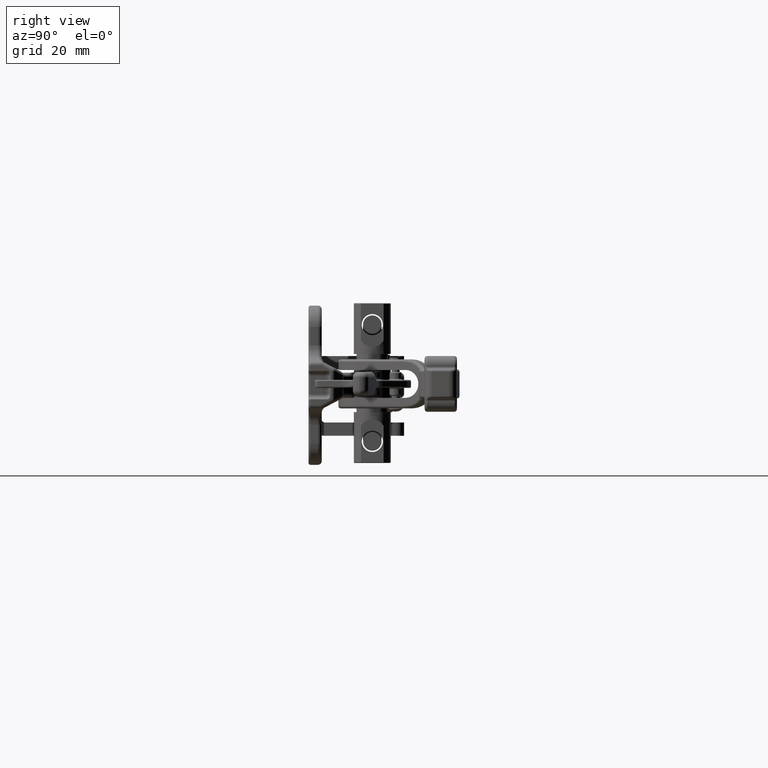
[diagram: clean part render]
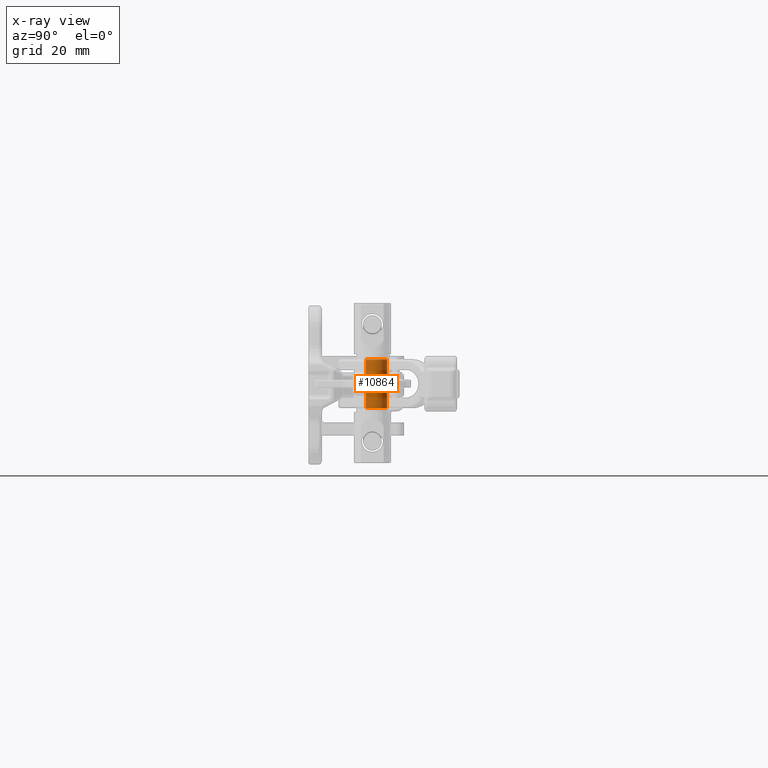
[diagram: x-ray — body ghosted, one internal face saturated and labeled with its STEP entity id]
A machine part, right view, then the same camera in x-ray: the body is ghosted and one INTERNAL B-rep face — a face not visible from any outside direction — is saturated and labeled: STEP entity #10864.
In plain terms, the highlighted cylindrical surface (bore or boss wall) has radius 4 mm, axis along (0, 0, -1).
Its self-contained STEP definition (entity closure, byte-faithful):
#634=FACE_BOUND('',#2332,.T.);
#1565=FACE_OUTER_BOUND('',#2331,.T.);
#2331=EDGE_LOOP('',(#9718));
#2332=EDGE_LOOP('',(#9719));
#4142=CIRCLE('',#12154,4.);
#4143=CIRCLE('',#12156,4.);
#5070=VERTEX_POINT('',#30830);
#5071=VERTEX_POINT('',#30833);
#6635=EDGE_CURVE('',#5070,#5070,#4142,.T.);
#6636=EDGE_CURVE('',#5071,#5071,#4143,.T.);
#9718=ORIENTED_EDGE('',*,*,#6635,.T.);
#9719=ORIENTED_EDGE('',*,*,#6636,.T.);
#10188=CYLINDRICAL_SURFACE('',#12155,4.);
#10864=ADVANCED_FACE('',(#1565,#634),#10188,.T.);
#12154=AXIS2_PLACEMENT_3D('',#30831,#15202,#15203);
#12155=AXIS2_PLACEMENT_3D('',#30832,#15204,#15205);
#12156=AXIS2_PLACEMENT_3D('',#30834,#15206,#15207);
#15202=DIRECTION('center_axis',(1.,0.,0.));
#15203=DIRECTION('ref_axis',(0.,1.,0.));
#15204=DIRECTION('center_axis',(1.,0.,0.));
#15205=DIRECTION('ref_axis',(0.,-1.,0.));
#15206=DIRECTION('center_axis',(-1.,0.,0.));
#15207=DIRECTION('ref_axis',(0.,1.,0.));
#30830=CARTESIAN_POINT('',(-21.5,4.,4.89858719658941E-16));
#30831=CARTESIAN_POINT('Origin',(-21.5,0.,0.));
#30832=CARTESIAN_POINT('Origin',(-24.36,0.,0.));
#30833=CARTESIAN_POINT('',(-3.,4.,4.89858719658941E-16));
#30834=CARTESIAN_POINT('Origin',(-3.,0.,0.));